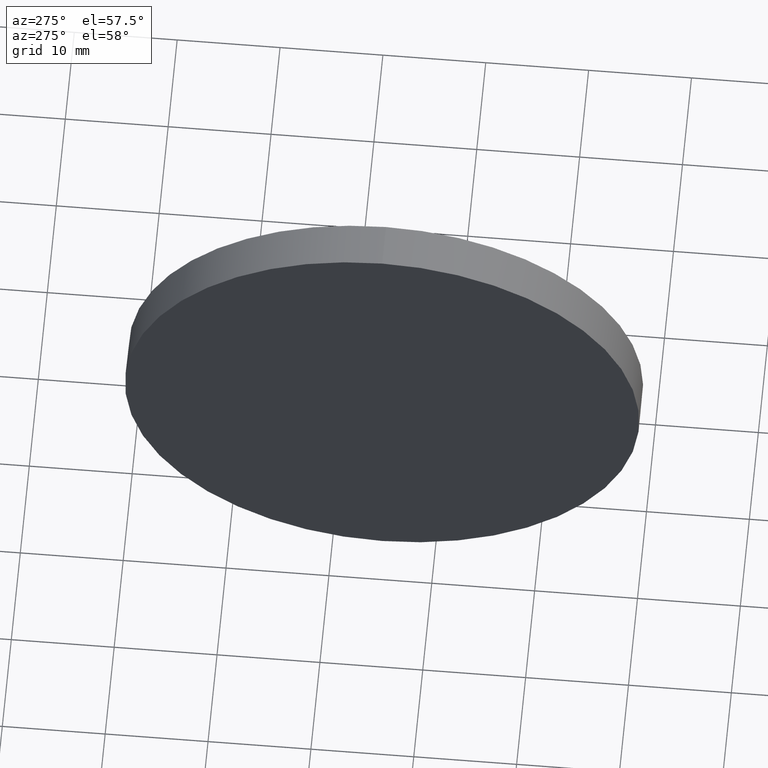
[diagram: clean part render]
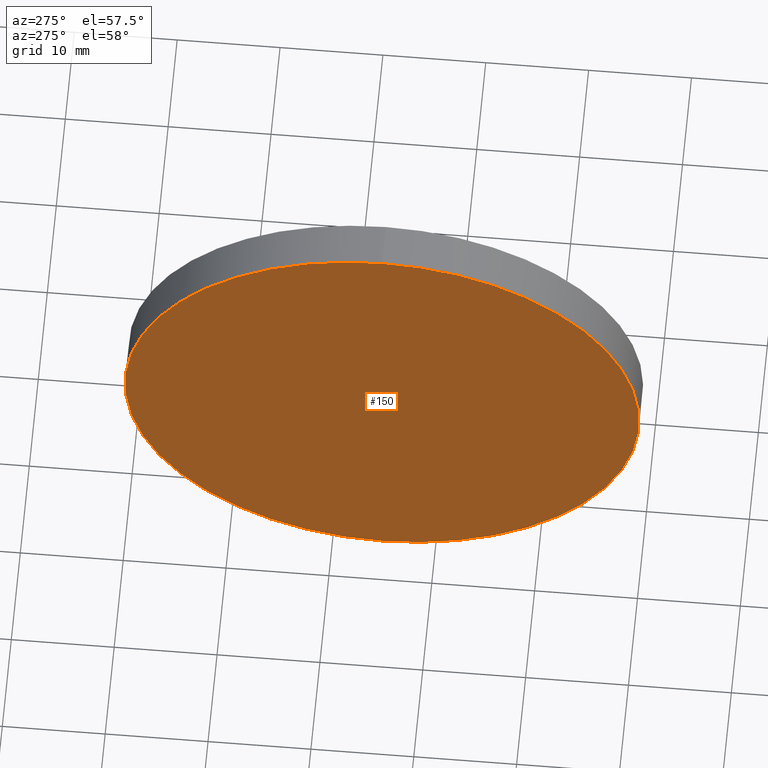
[diagram: same view with one face highlighted and labeled with its STEP entity id]
A machine part, auxiliary view. The second image highlights one B-rep face of the part: STEP entity #150.
In plain terms, the highlighted planar face has unit normal (1, 0, 0).
Its self-contained STEP definition (entity closure, byte-faithful):
#10 = DIRECTION ( 'NONE',  ( 1.000000000000000000, 0.0000000000000000000, 0.0000000000000000000 ) ) ;
#14 = CIRCLE ( 'NONE', #164, 24.99999999999999300 ) ;
#15 = CARTESIAN_POINT ( 'NONE',  ( 113.7394371346435000, 65.15563045701519200, 0.0000000000000000000 ) ) ;
#16 = EDGE_LOOP ( 'NONE', ( #167, #132 ) ) ;
#17 = DIRECTION ( 'NONE',  ( -1.000000000000000000, -0.0000000000000000000, -0.0000000000000000000 ) ) ;
#21 = AXIS2_PLACEMENT_3D ( 'NONE', #184, #149, #36 ) ;
#27 = FACE_OUTER_BOUND ( 'NONE', #16, .T. ) ;
#36 = DIRECTION ( 'NONE',  ( 0.0000000000000000000, 0.0000000000000000000, 1.000000000000000000 ) ) ;
#42 = CARTESIAN_POINT ( 'NONE',  ( 113.7394371346435000, 65.15563045701519200, 24.99999999999999300 ) ) ;
#49 = DIRECTION ( 'NONE',  ( 0.0000000000000000000, 0.0000000000000000000, -1.000000000000000000 ) ) ;
#51 = CIRCLE ( 'NONE', #21, 24.99999999999999300 ) ;
#77 = CARTESIAN_POINT ( 'NONE',  ( 113.7394371346435000, 65.15563045701519200, 0.0000000000000000000 ) ) ;
#79 = PLANE ( 'NONE',  #81 ) ;
#81 = AXIS2_PLACEMENT_3D ( 'NONE', #77, #10, #49 ) ;
#86 = DIRECTION ( 'NONE',  ( 0.0000000000000000000, 0.0000000000000000000, 1.000000000000000000 ) ) ;
#88 = VERTEX_POINT ( 'NONE', #142 ) ;
#96 = EDGE_CURVE ( 'NONE', #88, #163, #14, .T. ) ;
#132 = ORIENTED_EDGE ( 'NONE', *, *, #96, .T. ) ;
#142 = CARTESIAN_POINT ( 'NONE',  ( 113.7394371346435000, 65.15563045701519200, -24.99999999999999300 ) ) ;
#149 = DIRECTION ( 'NONE',  ( -1.000000000000000000, -0.0000000000000000000, -0.0000000000000000000 ) ) ;
#150 = ADVANCED_FACE ( 'NONE', ( #27 ), #79, .F. ) ;
#162 = EDGE_CURVE ( 'NONE', #163, #88, #51, .T. ) ;
#163 = VERTEX_POINT ( 'NONE', #42 ) ;
#164 = AXIS2_PLACEMENT_3D ( 'NONE', #15, #17, #86 ) ;
#167 = ORIENTED_EDGE ( 'NONE', *, *, #162, .T. ) ;
#184 = CARTESIAN_POINT ( 'NONE',  ( 113.7394371346435000, 65.15563045701519200, 0.0000000000000000000 ) ) ;